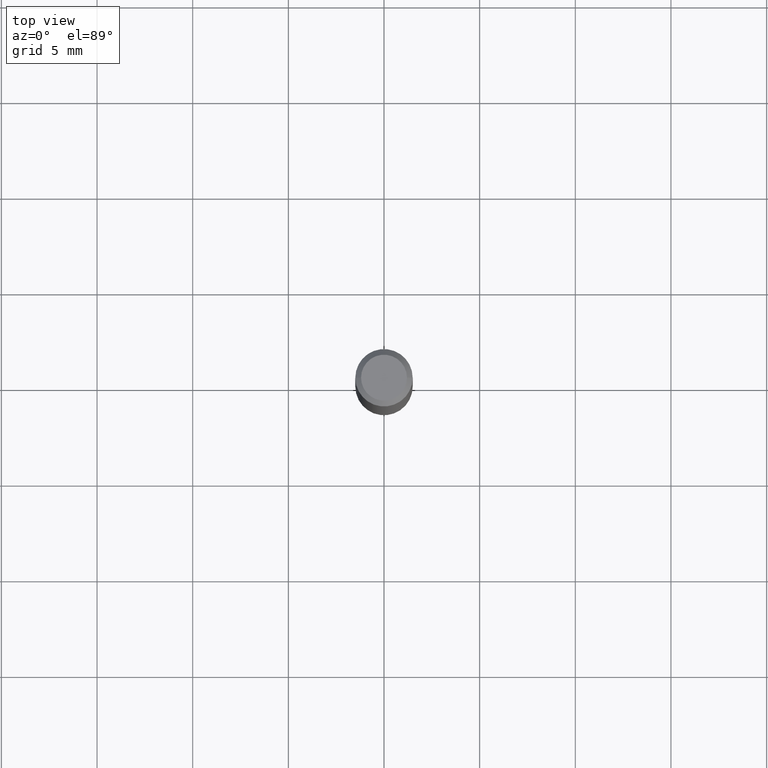
[diagram: clean part render]
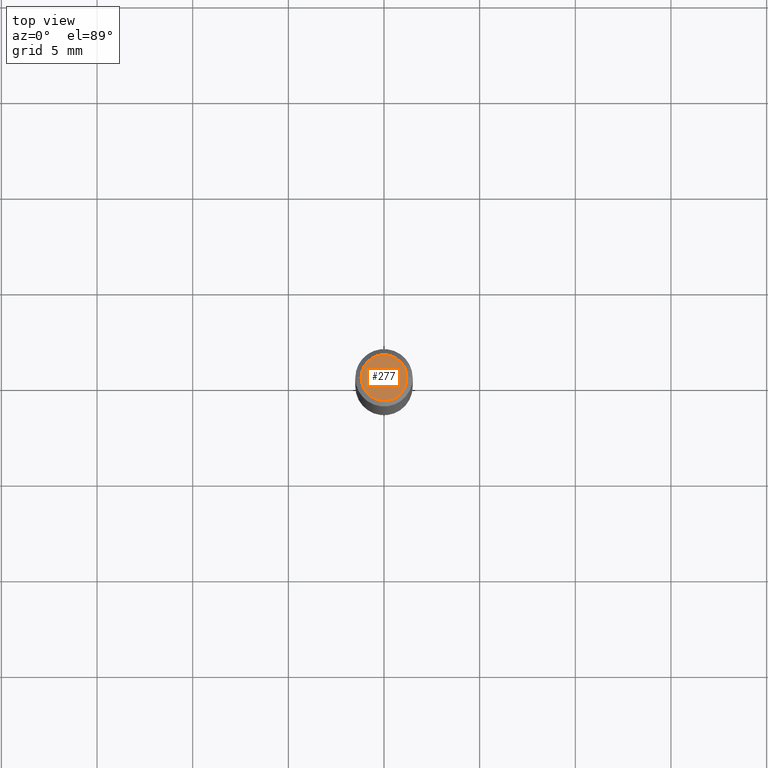
[diagram: same view with one face highlighted and labeled with its STEP entity id]
A machine part, top view. The second image highlights one B-rep face of the part: STEP entity #277.
In plain terms, the highlighted planar face has unit normal (0, -0, -1).
Its self-contained STEP definition (entity closure, byte-faithful):
#61 = EDGE_CURVE ( 'NONE', #174, #271, #196, .T. ) ;
#68 = ORIENTED_EDGE ( 'NONE', *, *, #61, .T. ) ;
#71 = AXIS2_PLACEMENT_3D ( 'NONE', #197, #117, #315 ) ;
#95 = CARTESIAN_POINT ( 'NONE',  ( 8.265746106709734507E-48, -1.180129479067563789E-33, -3.380025165646692144E-19 ) ) ;
#97 = AXIS2_PLACEMENT_3D ( 'NONE', #95, #334, #133 ) ;
#117 = DIRECTION ( 'NONE',  ( -2.445468806185136597E-29, 3.491481338843145583E-15, 1.000000000000000000 ) ) ;
#133 = DIRECTION ( 'NONE',  ( 1.000000000000000000, -6.982962677686266711E-15, 4.876185090822587894E-29 ) ) ;
#134 = AXIS2_PLACEMENT_3D ( 'NONE', #193, #344, #351 ) ;
#143 = FACE_OUTER_BOUND ( 'NONE', #308, .T. ) ;
#174 = VERTEX_POINT ( 'NONE', #477 ) ;
#193 = CARTESIAN_POINT ( 'NONE',  ( 4.132873053354867254E-48, -5.900647395337818946E-34, -1.690012582823346072E-19 ) ) ;
#196 = CIRCLE ( 'NONE', #97, 0.04724000000000000421 ) ;
#197 = CARTESIAN_POINT ( 'NONE',  ( 8.265746106709734507E-48, -1.180129479067563789E-33, -3.380025165646692144E-19 ) ) ;
#271 = VERTEX_POINT ( 'NONE', #389 ) ;
#277 = ADVANCED_FACE ( 'NONE', ( #143 ), #382, .F. ) ;
#308 = EDGE_LOOP ( 'NONE', ( #377, #68 ) ) ;
#314 = CIRCLE ( 'NONE', #71, 0.04724000000000000421 ) ;
#315 = DIRECTION ( 'NONE',  ( 1.000000000000000000, -6.982962677686266711E-15, 4.876185090822587894E-29 ) ) ;
#334 = DIRECTION ( 'NONE',  ( -2.445468806185136597E-29, 3.491481338843145583E-15, 1.000000000000000000 ) ) ;
#344 = DIRECTION ( 'NONE',  ( 2.438088387897960049E-29, -3.491481338843145188E-15, -1.000000000000000000 ) ) ;
#351 = DIRECTION ( 'NONE',  ( -1.000000000000000000, 6.982962677686265922E-15, -4.876176775795935793E-29 ) ) ;
#377 = ORIENTED_EDGE ( 'NONE', *, *, #442, .T. ) ;
#382 = PLANE ( 'NONE',  #134 ) ;
#389 = CARTESIAN_POINT ( 'NONE',  ( -0.04724000000000000421, 3.504923541997677355E-16, -3.380025165670481712E-19 ) ) ;
#442 = EDGE_CURVE ( 'NONE', #271, #174, #314, .T. ) ;
#477 = CARTESIAN_POINT ( 'NONE',  ( 0.04724000000000000421, -3.852183633974369345E-16, -3.380025165621689721E-19 ) ) ;